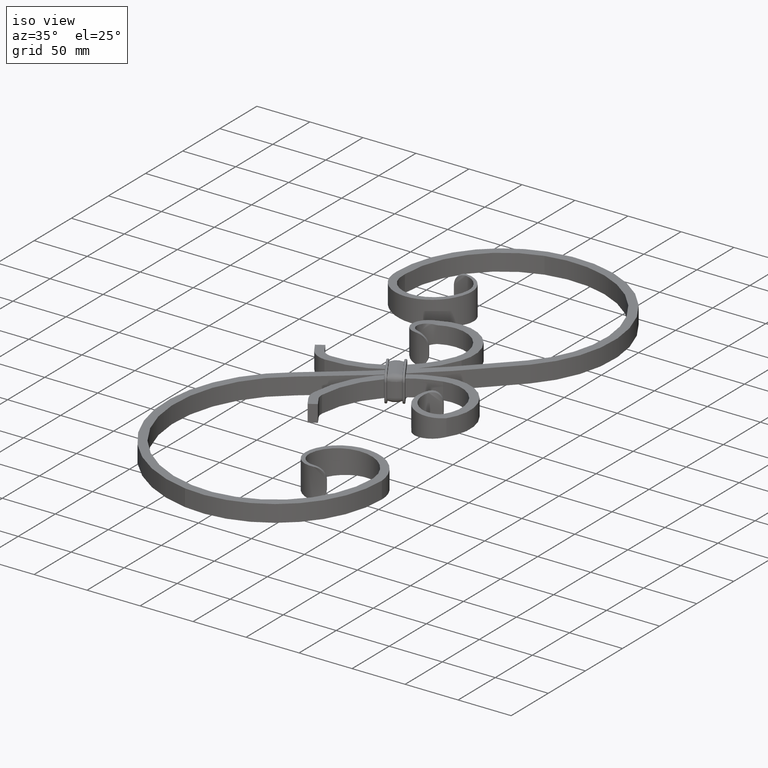
[diagram: clean part render]
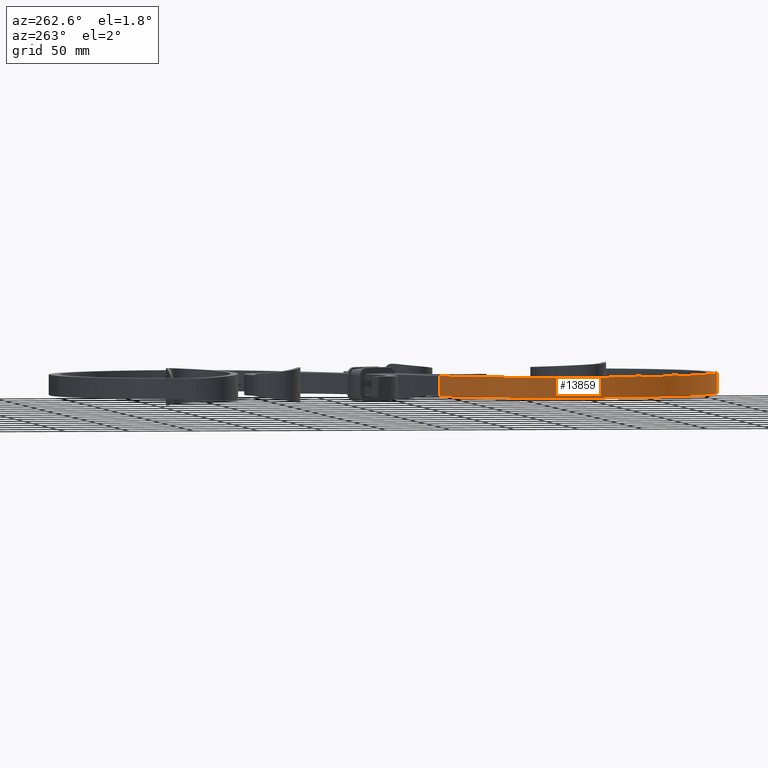
[diagram: tour spotlight — one face highlighted and labeled with its STEP entity id]
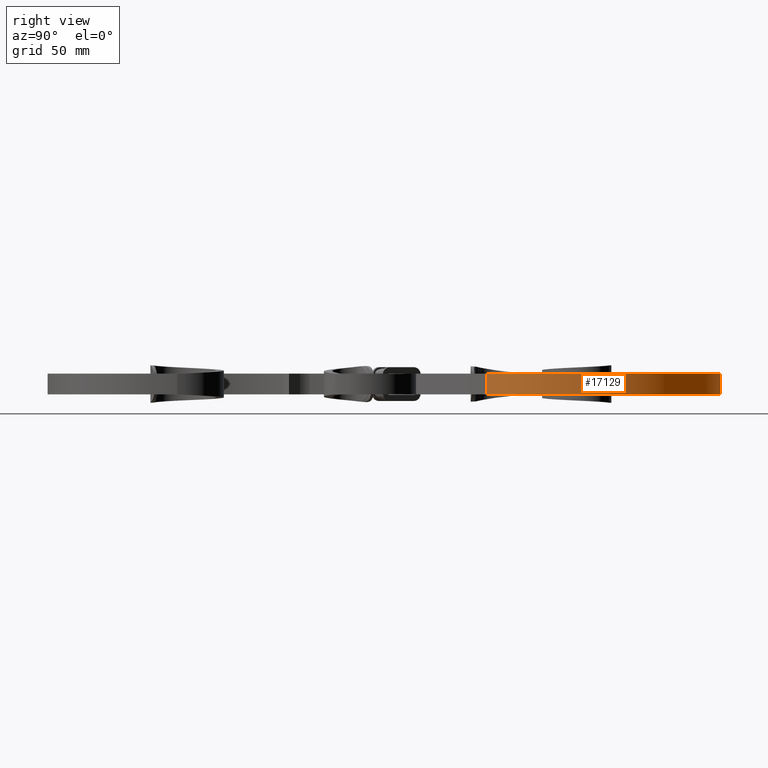
[diagram: tour spotlight — one face highlighted and labeled with its STEP entity id]
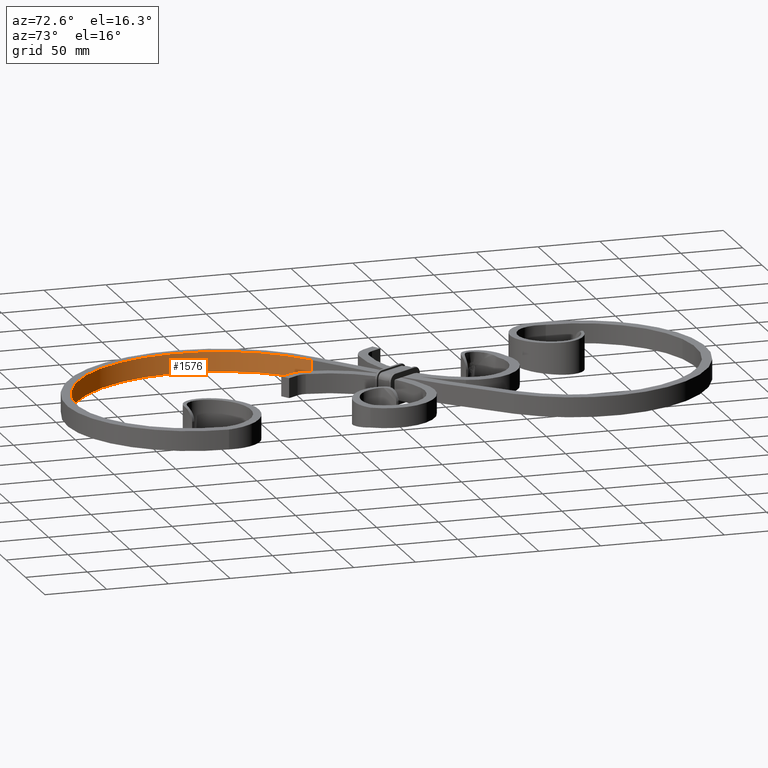
[diagram: tour spotlight — one face highlighted and labeled with its STEP entity id]
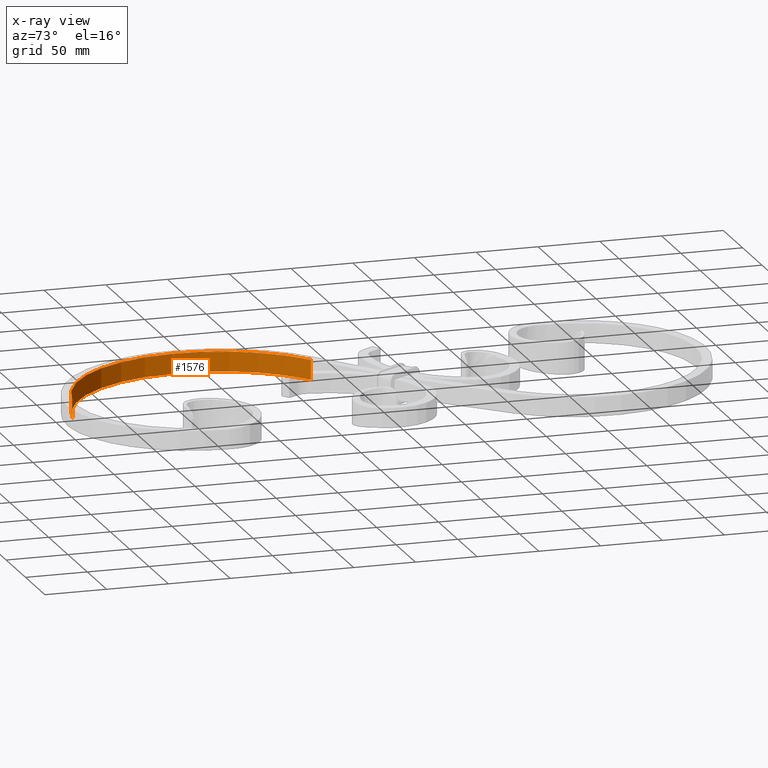
[diagram: x-ray of the same camera — body ghosted, this tour face saturated]
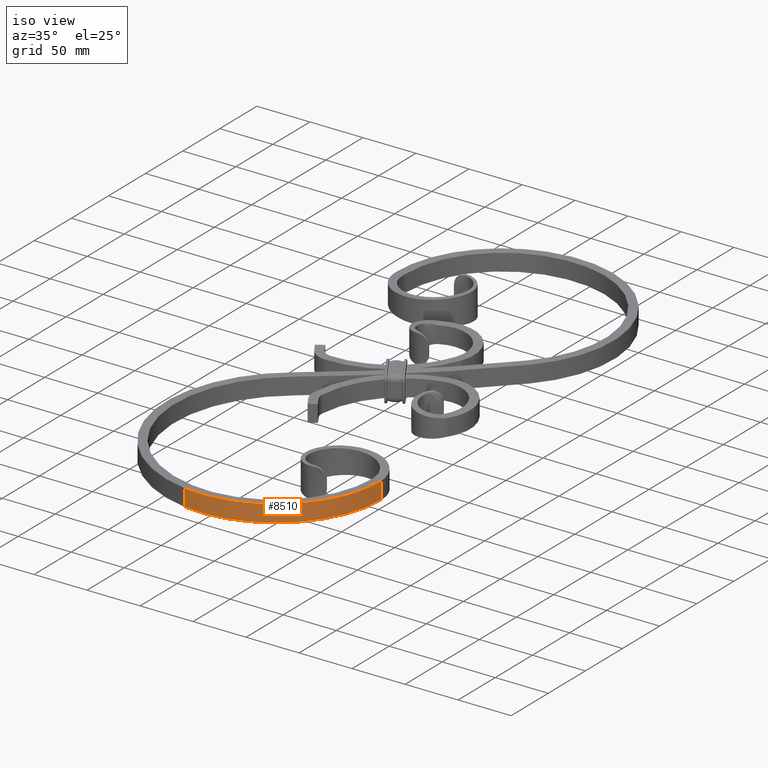
[diagram: tour spotlight — one face highlighted and labeled with its STEP entity id]
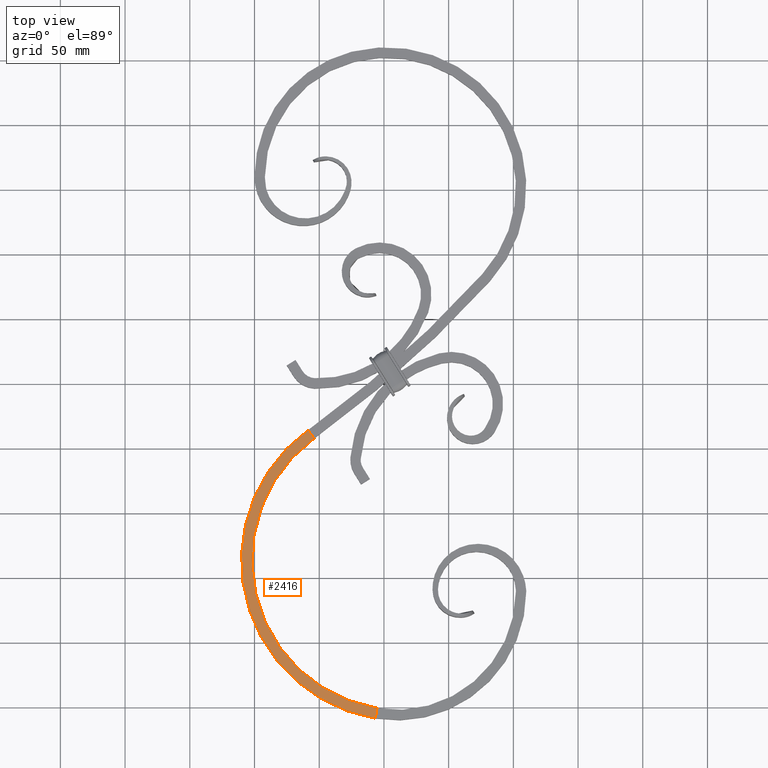
[diagram: tour spotlight — one face highlighted and labeled with its STEP entity id]
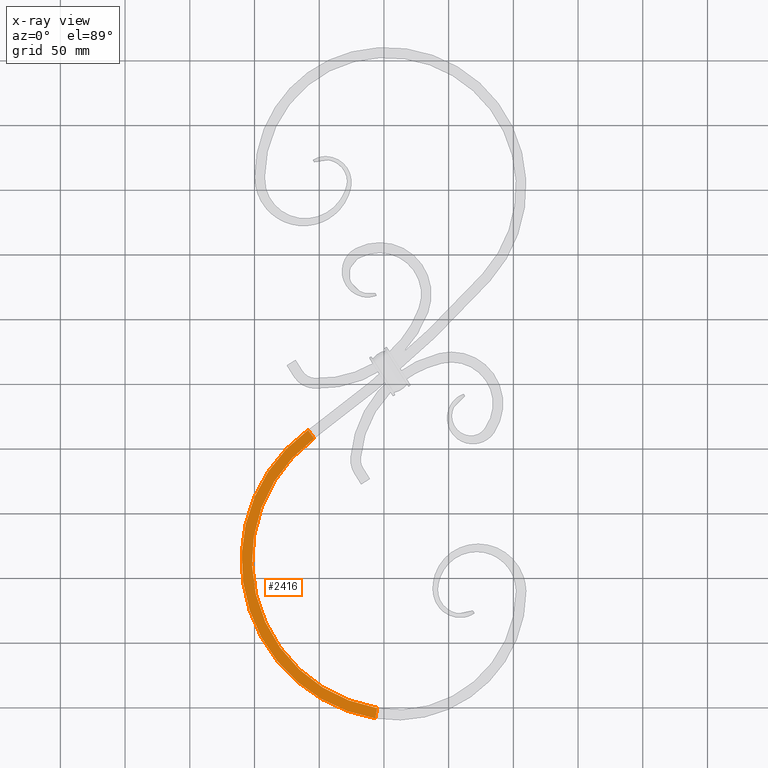
[diagram: x-ray of the same camera — body ghosted, this tour face saturated]
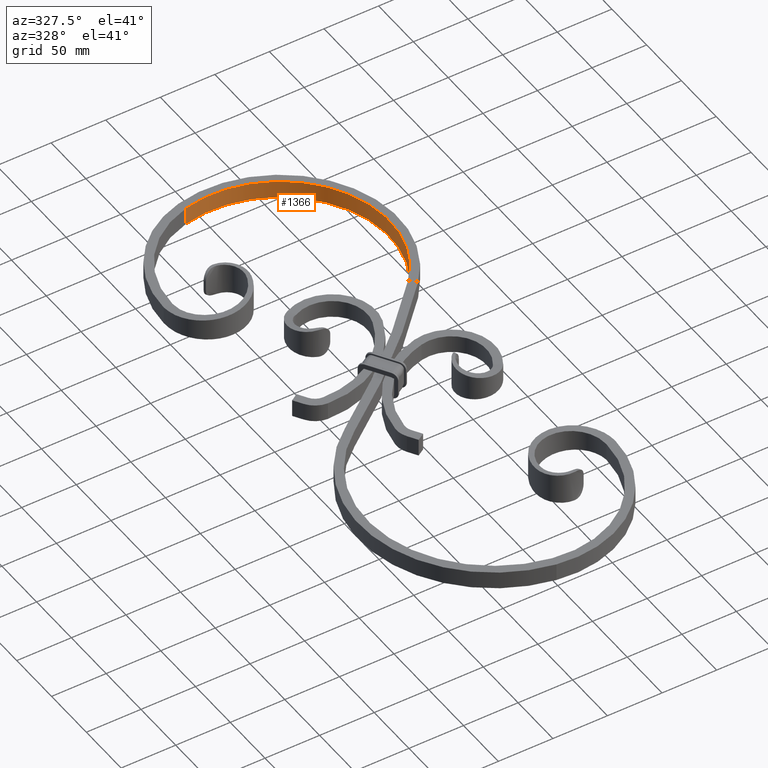
[diagram: tour spotlight — one face highlighted and labeled with its STEP entity id]
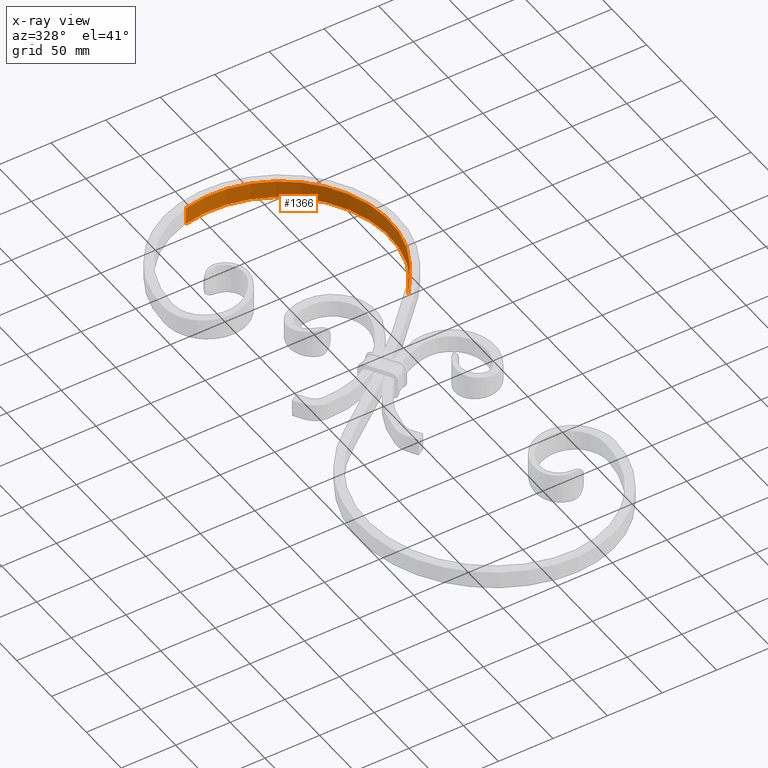
[diagram: x-ray of the same camera — body ghosted, this tour face saturated]
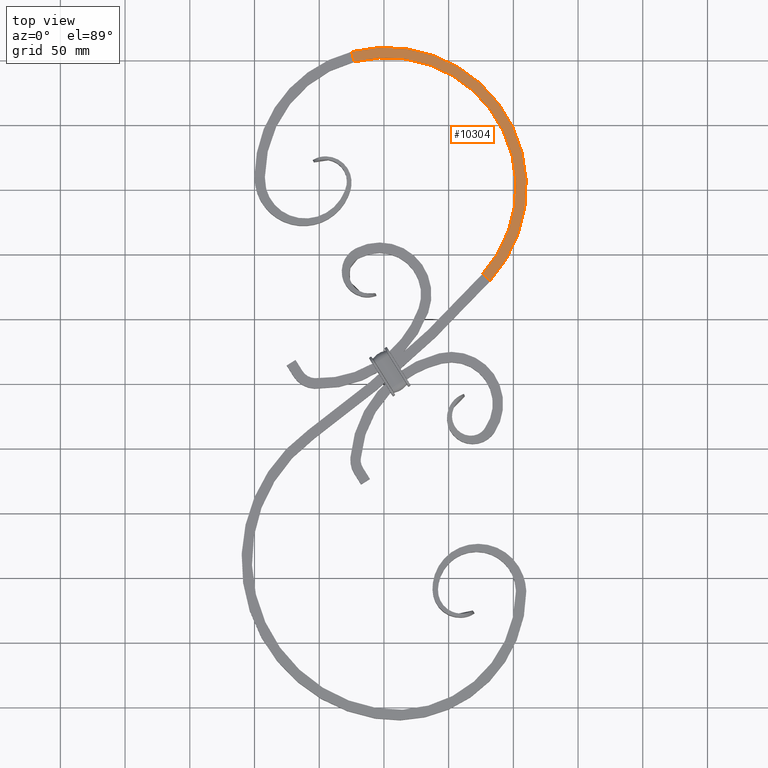
[diagram: tour spotlight — one face highlighted and labeled with its STEP entity id]
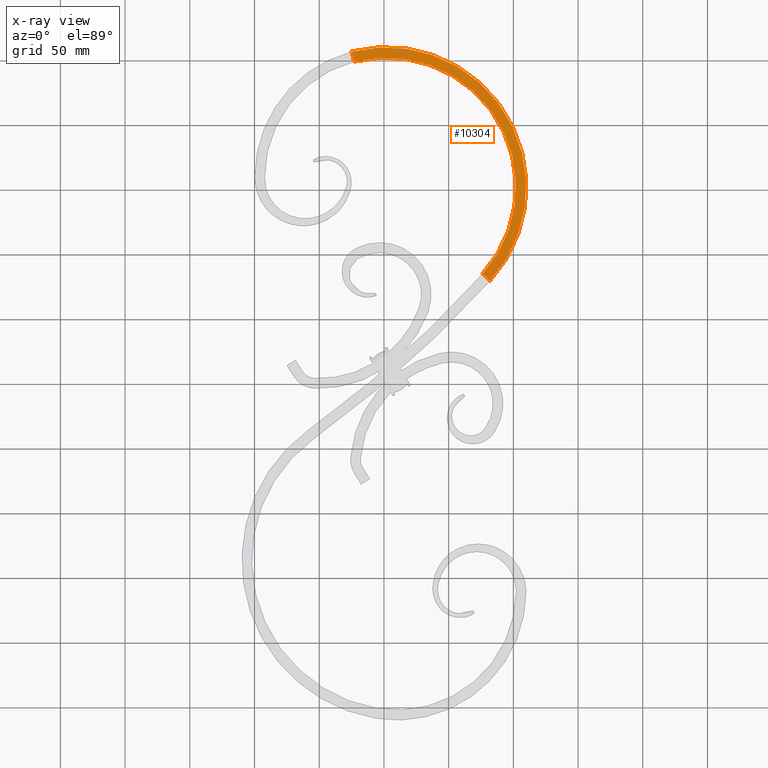
[diagram: x-ray of the same camera — body ghosted, this tour face saturated]
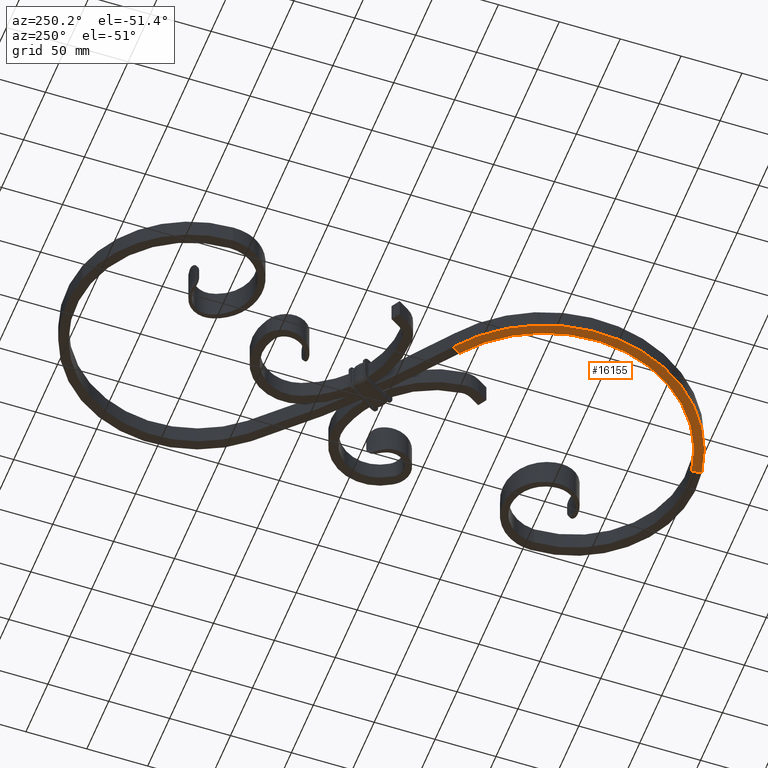
[diagram: tour spotlight — one face highlighted and labeled with its STEP entity id]
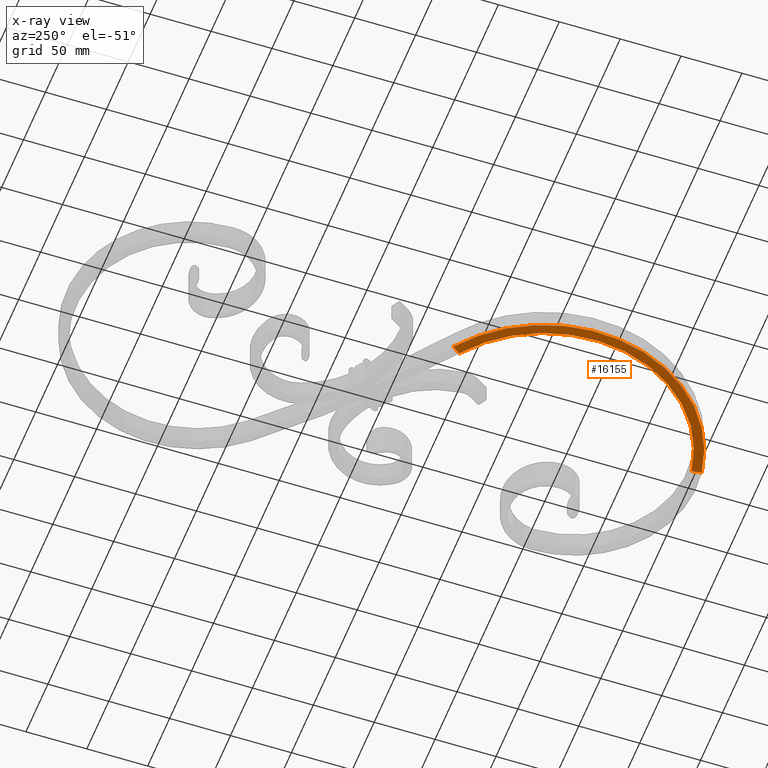
[diagram: x-ray of the same camera — body ghosted, this tour face saturated]
A machine part: a face-by-face anatomy tour. The part has 447 B-rep faces; the first image is the clean iso view, then the 8 largest visible faces are spotlighted one at a time (largest first), each with its STEP entity span.

Face 1 — auxiliary view, entity #13859. In plain terms, the highlighted cylindrical surface (partial cylindrical patch) has radius 124 mm, axis along (0, 0, 1).
Definition (entity closure, byte-faithful):
#66 = CYLINDRICAL_SURFACE ( 'NONE', #14224, 123.9999999999996021 ) ;
#320 = ORIENTED_EDGE ( 'NONE', *, *, #16294, .T. ) ;
#412 = VECTOR ( 'NONE', #17407, 1000.000000000000000 ) ;
#478 = VECTOR ( 'NONE', #2199, 1000.000000000000000 ) ;
#866 = ORIENTED_EDGE ( 'NONE', *, *, #8355, .T. ) ;
#867 = CARTESIAN_POINT ( 'NONE',  ( -6.666666666666518637, -258.6013297183266104, 8.000000000000001776 ) ) ;
#1367 = CARTESIAN_POINT ( 'NONE',  ( -58.65264834360872470, -35.84890219169978565, 8.000000000000001776 ) ) ;
#2199 = DIRECTION ( 'NONE',  ( -5.081945752965649062E-16, 7.028902177192451818E-16, -1.000000000000000000 ) ) ;
#3769 = AXIS2_PLACEMENT_3D ( 'NONE', #11984, #12242, #10721 ) ;
#3879 = LINE ( 'NONE', #7181, #412 ) ;
#4089 = VERTEX_POINT ( 'NONE', #1367 ) ;
#5553 = LINE ( 'NONE', #12718, #478 ) ;
#7181 = CARTESIAN_POINT ( 'NONE',  ( -6.666666666666543506, -258.6013297183266104, -8.000000000000000000 ) ) ;
#7786 = VERTEX_POINT ( 'NONE', #13438 ) ;
#8355 = EDGE_CURVE ( 'NONE', #4089, #7786, #5553, .T. ) ;
#8594 = DIRECTION ( 'NONE',  ( 0.000000000000000000, 0.000000000000000000, 1.000000000000000000 ) ) ;
#9217 = CIRCLE ( 'NONE', #12560, 123.9999999999995879 ) ;
#9862 = CARTESIAN_POINT ( 'NONE',  ( 14.00000000000002309, -136.3356808676015817, 8.000000000000001776 ) ) ;
#10060 = VERTEX_POINT ( 'NONE', #11840 ) ;
#10305 = EDGE_CURVE ( 'NONE', #4089, #15527, #9217, .T. ) ;
#10721 = DIRECTION ( 'NONE',  ( -0.5859084543839467862, 0.8103772473863112280, 0.000000000000000000 ) ) ;
#11293 = CIRCLE ( 'NONE', #3769, 123.9999999999996305 ) ;
#11840 = CARTESIAN_POINT ( 'NONE',  ( -6.666666666666532848, -258.6013297183266104, -8.000000000000000000 ) ) ;
#11984 = CARTESIAN_POINT ( 'NONE',  ( 14.00000000000002309, -136.3356808676015817, -8.000000000000000000 ) ) ;
#12242 = DIRECTION ( 'NONE',  ( 0.000000000000000000, 0.000000000000000000, 1.000000000000000000 ) ) ;
#12560 = AXIS2_PLACEMENT_3D ( 'NONE', #9862, #8594, #18822 ) ;
#12594 = ORIENTED_EDGE ( 'NONE', *, *, #10305, .F. ) ;
#12718 = CARTESIAN_POINT ( 'NONE',  ( -58.65264834360876733, -35.84890219169994907, -8.000000000000000000 ) ) ;
#13438 = CARTESIAN_POINT ( 'NONE',  ( -58.65264834360883839, -35.84890219169989223, -8.000000000000000000 ) ) ;
#13500 = EDGE_CURVE ( 'NONE', #15527, #10060, #3879, .T. ) ;
#13859 = ADVANCED_FACE ( 'NONE', ( #15587 ), #66, .T. ) ;
#13918 = ORIENTED_EDGE ( 'NONE', *, *, #13500, .F. ) ;
#14224 = AXIS2_PLACEMENT_3D ( 'NONE', #17252, #15856, #15669 ) ;
#15527 = VERTEX_POINT ( 'NONE', #867 ) ;
#15587 = FACE_OUTER_BOUND ( 'NONE', #16447, .T. ) ;
#15669 = DIRECTION ( 'NONE',  ( 1.000000000000000000, 0.000000000000000000, 0.000000000000000000 ) ) ;
#15856 = DIRECTION ( 'NONE',  ( 0.000000000000000000, 0.000000000000000000, 1.000000000000000000 ) ) ;
#16294 = EDGE_CURVE ( 'NONE', #7786, #10060, #11293, .T. ) ;
#16447 = EDGE_LOOP ( 'NONE', ( #320, #13918, #12594, #866 ) ) ;
#17252 = CARTESIAN_POINT ( 'NONE',  ( 14.00000000000002309, -136.3356808676015817, 0.000000000000000000 ) ) ;
#17407 = DIRECTION ( 'NONE',  ( -1.445602896647334479E-16, -8.552302071245568942E-16, -1.000000000000000000 ) ) ;
#18822 = DIRECTION ( 'NONE',  ( -0.5859084543839467862, 0.8103772473863111170, 0.000000000000000000 ) ) ;

Face 2 — right view, entity #17129. In plain terms, the highlighted cylindrical surface (partial cylindrical patch) has radius 108 mm, axis along (-0, -0, -1).
Definition (entity closure, byte-faithful):
#208 = AXIS2_PLACEMENT_3D ( 'NONE', #1173, #4249, #7231 ) ;
#1173 = CARTESIAN_POINT ( 'NONE',  ( 1.999999999999987121, 151.9999999999999716, 8.000000000000000000 ) ) ;
#1395 = CARTESIAN_POINT ( 'NONE',  ( -24.99999999999998579, 256.5705503476002605, -8.000000000000000000 ) ) ;
#1455 = CARTESIAN_POINT ( 'NONE',  ( 82.05368058509193929, 79.50580557878959098, -8.000000000000000000 ) ) ;
#2307 = CIRCLE ( 'NONE', #208, 108.0000000000007958 ) ;
#2796 = CYLINDRICAL_SURFACE ( 'NONE', #4639, 108.0000000000008100 ) ;
#4249 = DIRECTION ( 'NONE',  ( -0.000000000000000000, -0.000000000000000000, -1.000000000000000000 ) ) ;
#4330 = DIRECTION ( 'NONE',  ( -0.2499999999999998335, 0.9682458365518543664, 0.000000000000000000 ) ) ;
#4555 = DIRECTION ( 'NONE',  ( 0.000000000000000000, 0.000000000000000000, 1.000000000000000000 ) ) ;
#4639 = AXIS2_PLACEMENT_3D ( 'NONE', #12140, #12003, #13437 ) ;
#4689 = CARTESIAN_POINT ( 'NONE',  ( 82.05368058509193929, 79.50580557878959098, 8.000000000000000000 ) ) ;
#5059 = VECTOR ( 'NONE', #4555, 1000.000000000000000 ) ;
#5605 = AXIS2_PLACEMENT_3D ( 'NONE', #5738, #6001, #4330 ) ;
#5738 = CARTESIAN_POINT ( 'NONE',  ( 1.999999999999987121, 151.9999999999999716, -8.000000000000000000 ) ) ;
#6001 = DIRECTION ( 'NONE',  ( -0.000000000000000000, -0.000000000000000000, -1.000000000000000000 ) ) ;
#6668 = EDGE_CURVE ( 'NONE', #15801, #6994, #8126, .T. ) ;
#6994 = VERTEX_POINT ( 'NONE', #18063 ) ;
#7231 = DIRECTION ( 'NONE',  ( -0.2499999999999998335, 0.9682458365518543664, 0.000000000000000000 ) ) ;
#8126 = LINE ( 'NONE', #10090, #8361 ) ;
#8361 = VECTOR ( 'NONE', #8630, 1000.000000000000000 ) ;
#8630 = DIRECTION ( 'NONE',  ( 0.000000000000000000, 0.000000000000000000, 1.000000000000000000 ) ) ;
#8819 = ORIENTED_EDGE ( 'NONE', *, *, #14389, .F. ) ;
#9075 = CIRCLE ( 'NONE', #5605, 108.0000000000007958 ) ;
#9134 = ORIENTED_EDGE ( 'NONE', *, *, #18415, .F. ) ;
#9566 = EDGE_LOOP ( 'NONE', ( #17645, #9134, #8819, #13606 ) ) ;
#10090 = CARTESIAN_POINT ( 'NONE',  ( -24.99999999999999289, 256.5705503476002605, -8.000000000000000000 ) ) ;
#10138 = LINE ( 'NONE', #17880, #5059 ) ;
#11738 = FACE_OUTER_BOUND ( 'NONE', #9566, .T. ) ;
#12003 = DIRECTION ( 'NONE',  ( -0.000000000000000000, -0.000000000000000000, -1.000000000000000000 ) ) ;
#12140 = CARTESIAN_POINT ( 'NONE',  ( 1.999999999999987121, 151.9999999999999716, 0.000000000000000000 ) ) ;
#12155 = VERTEX_POINT ( 'NONE', #4689 ) ;
#13437 = DIRECTION ( 'NONE',  ( -1.000000000000000000, 0.000000000000000000, 0.000000000000000000 ) ) ;
#13606 = ORIENTED_EDGE ( 'NONE', *, *, #6668, .T. ) ;
#14389 = EDGE_CURVE ( 'NONE', #15801, #18759, #9075, .T. ) ;
#15801 = VERTEX_POINT ( 'NONE', #1395 ) ;
#17129 = ADVANCED_FACE ( 'NONE', ( #11738 ), #2796, .T. ) ;
#17645 = ORIENTED_EDGE ( 'NONE', *, *, #19066, .T. ) ;
#17880 = CARTESIAN_POINT ( 'NONE',  ( 82.05368058509193929, 79.50580557878963361, -8.000000000000000000 ) ) ;
#18063 = CARTESIAN_POINT ( 'NONE',  ( -24.99999999999998579, 256.5705503476002605, 8.000000000000000000 ) ) ;
#18415 = EDGE_CURVE ( 'NONE', #18759, #12155, #10138, .T. ) ;
#18759 = VERTEX_POINT ( 'NONE', #1455 ) ;
#19066 = EDGE_CURVE ( 'NONE', #6994, #12155, #2307, .T. ) ;

Face 3 — auxiliary view, entity #1576. An x-ray twin of the same camera follows (body ghosted, this face saturated) — the face is partly hidden behind the body. In plain terms, the highlighted cylindrical surface (partial cylindrical patch) has radius 116 mm, axis along (0, 0, 1).
Definition (entity closure, byte-faithful):
#1058 = DIRECTION ( 'NONE',  ( 0.000000000000000000, 0.000000000000000000, 1.000000000000000000 ) ) ;
#1576 = ADVANCED_FACE ( 'NONE', ( #12109 ), #4537, .F. ) ;
#1999 = VERTEX_POINT ( 'NONE', #6798 ) ;
#2323 = EDGE_CURVE ( 'NONE', #1999, #17006, #10280, .T. ) ;
#2352 = EDGE_CURVE ( 'NONE', #17006, #9635, #17126, .T. ) ;
#2988 = DIRECTION ( 'NONE',  ( -0.5859084543839467862, 0.8103772473863111170, 0.000000000000000000 ) ) ;
#3177 = ORIENTED_EDGE ( 'NONE', *, *, #16029, .F. ) ;
#3439 = CARTESIAN_POINT ( 'NONE',  ( -53.96538070853713975, -42.33192017079040426, -8.000000000000000000 ) ) ;
#4537 = CYLINDRICAL_SURFACE ( 'NONE', #5064, 115.9999999999996163 ) ;
#4785 = DIRECTION ( 'NONE',  ( 0.000000000000000000, 0.000000000000000000, 1.000000000000000000 ) ) ;
#5064 = AXIS2_PLACEMENT_3D ( 'NONE', #9332, #12134, #16622 ) ;
#5103 = AXIS2_PLACEMENT_3D ( 'NONE', #9864, #1058, #17282 ) ;
#5265 = CARTESIAN_POINT ( 'NONE',  ( -5.333333333333217574, -250.7132233408604236, -8.000000000000000000 ) ) ;
#5922 = DIRECTION ( 'NONE',  ( 0.000000000000000000, 0.000000000000000000, 1.000000000000000000 ) ) ;
#6798 = CARTESIAN_POINT ( 'NONE',  ( -53.96538070853728897, -42.33192017079034741, -8.000000000000000000 ) ) ;
#6890 = ORIENTED_EDGE ( 'NONE', *, *, #2323, .T. ) ;
#8128 = CIRCLE ( 'NONE', #5103, 115.9999999999996305 ) ;
#9332 = CARTESIAN_POINT ( 'NONE',  ( 14.00000000000002309, -136.3356808676015817, 0.000000000000000000 ) ) ;
#9387 = ORIENTED_EDGE ( 'NONE', *, *, #2352, .T. ) ;
#9539 = DIRECTION ( 'NONE',  ( 0.000000000000000000, 0.000000000000000000, 1.000000000000000000 ) ) ;
#9635 = VERTEX_POINT ( 'NONE', #10725 ) ;
#9864 = CARTESIAN_POINT ( 'NONE',  ( 14.00000000000002309, -136.3356808676015817, -8.000000000000000000 ) ) ;
#10005 = AXIS2_PLACEMENT_3D ( 'NONE', #10377, #5922, #2988 ) ;
#10049 = VECTOR ( 'NONE', #4785, 1000.000000000000000 ) ;
#10280 = LINE ( 'NONE', #3439, #10049 ) ;
#10377 = CARTESIAN_POINT ( 'NONE',  ( 14.00000000000002309, -136.3356808676015817, 8.000000000000000000 ) ) ;
#10725 = CARTESIAN_POINT ( 'NONE',  ( -5.333333333333248660, -250.7132233408604236, 8.000000000000000000 ) ) ;
#12076 = VERTEX_POINT ( 'NONE', #18991 ) ;
#12109 = FACE_OUTER_BOUND ( 'NONE', #17601, .T. ) ;
#12134 = DIRECTION ( 'NONE',  ( 0.000000000000000000, 0.000000000000000000, 1.000000000000000000 ) ) ;
#13160 = LINE ( 'NONE', #5265, #14767 ) ;
#14767 = VECTOR ( 'NONE', #9539, 1000.000000000000000 ) ;
#15650 = EDGE_CURVE ( 'NONE', #1999, #12076, #8128, .T. ) ;
#16029 = EDGE_CURVE ( 'NONE', #12076, #9635, #13160, .T. ) ;
#16076 = CARTESIAN_POINT ( 'NONE',  ( -53.96538070853728897, -42.33192017079034741, 8.000000000000000000 ) ) ;
#16542 = ORIENTED_EDGE ( 'NONE', *, *, #15650, .F. ) ;
#16622 = DIRECTION ( 'NONE',  ( 1.000000000000000000, 0.000000000000000000, 0.000000000000000000 ) ) ;
#17006 = VERTEX_POINT ( 'NONE', #16076 ) ;
#17126 = CIRCLE ( 'NONE', #10005, 115.9999999999996305 ) ;
#17282 = DIRECTION ( 'NONE',  ( -0.5859084543839467862, 0.8103772473863111170, 0.000000000000000000 ) ) ;
#17601 = EDGE_LOOP ( 'NONE', ( #9387, #3177, #16542, #6890 ) ) ;
#18991 = CARTESIAN_POINT ( 'NONE',  ( -5.333333333333248660, -250.7132233408604236, -8.000000000000000000 ) ) ;

Face 4 — iso view, entity #8510. In plain terms, the highlighted cylindrical surface (partial cylindrical patch) has radius 100 mm, axis along (0, 0, 1).
Definition (entity closure, byte-faithful):
#357 = CARTESIAN_POINT ( 'NONE',  ( 110.0000000000000568, -160.0000000000000000, -8.000000000000000000 ) ) ;
#412 = VECTOR ( 'NONE', #17407, 1000.000000000000000 ) ;
#867 = CARTESIAN_POINT ( 'NONE',  ( -6.666666666666518637, -258.6013297183266104, 8.000000000000001776 ) ) ;
#1821 = CARTESIAN_POINT ( 'NONE',  ( 110.0000000000000711, -160.0000000000000000, -8.000000000000000000 ) ) ;
#1858 = DIRECTION ( 'NONE',  ( 8.673617379884035472E-16, 0.000000000000000000, -1.000000000000000000 ) ) ;
#1880 = FACE_OUTER_BOUND ( 'NONE', #12505, .T. ) ;
#2710 = DIRECTION ( 'NONE',  ( -0.1666666666666663521, -0.9860132971832693549, 0.000000000000000000 ) ) ;
#3879 = LINE ( 'NONE', #7181, #412 ) ;
#5258 = EDGE_CURVE ( 'NONE', #15527, #15150, #15030, .T. ) ;
#5699 = CARTESIAN_POINT ( 'NONE',  ( 110.0000000000000426, -160.0000000000000000, 8.000000000000000000 ) ) ;
#6341 = DIRECTION ( 'NONE',  ( 0.000000000000000000, 0.000000000000000000, 1.000000000000000000 ) ) ;
#6545 = CARTESIAN_POINT ( 'NONE',  ( 10.00000000000003730, -160.0000000000000568, -8.000000000000000000 ) ) ;
#6726 = AXIS2_PLACEMENT_3D ( 'NONE', #6545, #6341, #7955 ) ;
#7009 = EDGE_CURVE ( 'NONE', #15150, #14620, #12460, .T. ) ;
#7181 = CARTESIAN_POINT ( 'NONE',  ( -6.666666666666543506, -258.6013297183266104, -8.000000000000000000 ) ) ;
#7351 = CARTESIAN_POINT ( 'NONE',  ( 10.00000000000003730, -160.0000000000000568, 8.000000000000001776 ) ) ;
#7955 = DIRECTION ( 'NONE',  ( -0.1666666666666662411, -0.9860132971832693549, 0.000000000000000000 ) ) ;
#8510 = ADVANCED_FACE ( 'NONE', ( #1880 ), #9254, .T. ) ;
#9030 = CARTESIAN_POINT ( 'NONE',  ( 10.00000000000003730, -160.0000000000000568, 0.000000000000000000 ) ) ;
#9151 = DIRECTION ( 'NONE',  ( 0.000000000000000000, 0.000000000000000000, 1.000000000000000000 ) ) ;
#9254 = CYLINDRICAL_SURFACE ( 'NONE', #12415, 100.0000000000000426 ) ;
#10060 = VERTEX_POINT ( 'NONE', #11840 ) ;
#11166 = ORIENTED_EDGE ( 'NONE', *, *, #5258, .F. ) ;
#11840 = CARTESIAN_POINT ( 'NONE',  ( -6.666666666666532848, -258.6013297183266104, -8.000000000000000000 ) ) ;
#12129 = DIRECTION ( 'NONE',  ( 1.000000000000000000, 0.000000000000000000, 0.000000000000000000 ) ) ;
#12415 = AXIS2_PLACEMENT_3D ( 'NONE', #9030, #9151, #12129 ) ;
#12460 = LINE ( 'NONE', #357, #17276 ) ;
#12505 = EDGE_LOOP ( 'NONE', ( #13708, #15752, #11166, #15054 ) ) ;
#12967 = DIRECTION ( 'NONE',  ( 0.000000000000000000, 0.000000000000000000, 1.000000000000000000 ) ) ;
#13500 = EDGE_CURVE ( 'NONE', #15527, #10060, #3879, .T. ) ;
#13708 = ORIENTED_EDGE ( 'NONE', *, *, #14135, .T. ) ;
#13925 = CIRCLE ( 'NONE', #6726, 100.0000000000000568 ) ;
#14135 = EDGE_CURVE ( 'NONE', #10060, #14620, #13925, .T. ) ;
#14620 = VERTEX_POINT ( 'NONE', #1821 ) ;
#15030 = CIRCLE ( 'NONE', #17547, 100.0000000000000000 ) ;
#15054 = ORIENTED_EDGE ( 'NONE', *, *, #13500, .T. ) ;
#15150 = VERTEX_POINT ( 'NONE', #5699 ) ;
#15527 = VERTEX_POINT ( 'NONE', #867 ) ;
#15752 = ORIENTED_EDGE ( 'NONE', *, *, #7009, .F. ) ;
#17276 = VECTOR ( 'NONE', #1858, 1000.000000000000000 ) ;
#17407 = DIRECTION ( 'NONE',  ( -1.445602896647334479E-16, -8.552302071245568942E-16, -1.000000000000000000 ) ) ;
#17547 = AXIS2_PLACEMENT_3D ( 'NONE', #7351, #12967, #2710 ) ;

Face 5 — top view, entity #2416. An x-ray twin of the same camera follows (body ghosted, this face saturated) — the face is partly hidden behind the body. In plain terms, the highlighted planar face has unit normal (0, 0, 1).
Definition (entity closure, byte-faithful):
#209 = VECTOR ( 'NONE', #12053, 1000.000000000000114 ) ;
#551 = DIRECTION ( 'NONE',  ( -0.1666666666666661023, -0.9860132971832693549, 2.168404344971010347E-16 ) ) ;
#867 = CARTESIAN_POINT ( 'NONE',  ( -6.666666666666518637, -258.6013297183266104, 8.000000000000001776 ) ) ;
#1367 = CARTESIAN_POINT ( 'NONE',  ( -58.65264834360872470, -35.84890219169978565, 8.000000000000001776 ) ) ;
#1545 = CARTESIAN_POINT ( 'NONE',  ( -5.333333333333217574, -250.7132233408604236, 8.000000000000000000 ) ) ;
#1686 = DIRECTION ( 'NONE',  ( 1.000000000000000000, 0.000000000000000000, -0.000000000000000000 ) ) ;
#1749 = CARTESIAN_POINT ( 'NONE',  ( -53.96538070853756608, -42.33192017078979319, 8.000000000000000000 ) ) ;
#2270 = VECTOR ( 'NONE', #551, 1000.000000000000114 ) ;
#2352 = EDGE_CURVE ( 'NONE', #17006, #9635, #17126, .T. ) ;
#2416 = ADVANCED_FACE ( 'NONE', ( #7303 ), #4583, .T. ) ;
#2988 = DIRECTION ( 'NONE',  ( -0.5859084543839467862, 0.8103772473863111170, 0.000000000000000000 ) ) ;
#4089 = VERTEX_POINT ( 'NONE', #1367 ) ;
#4513 = DIRECTION ( 'NONE',  ( 0.000000000000000000, 0.000000000000000000, 1.000000000000000000 ) ) ;
#4583 = PLANE ( 'NONE',  #15535 ) ;
#5041 = LINE ( 'NONE', #6363, #209 ) ;
#5922 = DIRECTION ( 'NONE',  ( 0.000000000000000000, 0.000000000000000000, 1.000000000000000000 ) ) ;
#6363 = CARTESIAN_POINT ( 'NONE',  ( -53.96538070853713975, -42.33192017079040426, 8.000000000000000000 ) ) ;
#6385 = ORIENTED_EDGE ( 'NONE', *, *, #10305, .T. ) ;
#7123 = LINE ( 'NONE', #1545, #2270 ) ;
#7303 = FACE_OUTER_BOUND ( 'NONE', #11640, .T. ) ;
#7964 = ORIENTED_EDGE ( 'NONE', *, *, #10890, .T. ) ;
#8594 = DIRECTION ( 'NONE',  ( 0.000000000000000000, 0.000000000000000000, 1.000000000000000000 ) ) ;
#9217 = CIRCLE ( 'NONE', #12560, 123.9999999999995879 ) ;
#9635 = VERTEX_POINT ( 'NONE', #10725 ) ;
#9862 = CARTESIAN_POINT ( 'NONE',  ( 14.00000000000002309, -136.3356808676015817, 8.000000000000001776 ) ) ;
#10005 = AXIS2_PLACEMENT_3D ( 'NONE', #10377, #5922, #2988 ) ;
#10305 = EDGE_CURVE ( 'NONE', #4089, #15527, #9217, .T. ) ;
#10377 = CARTESIAN_POINT ( 'NONE',  ( 14.00000000000002309, -136.3356808676015817, 8.000000000000000000 ) ) ;
#10725 = CARTESIAN_POINT ( 'NONE',  ( -5.333333333333248660, -250.7132233408604236, 8.000000000000000000 ) ) ;
#10890 = EDGE_CURVE ( 'NONE', #17006, #4089, #5041, .T. ) ;
#11640 = EDGE_LOOP ( 'NONE', ( #6385, #13936, #15961, #7964 ) ) ;
#12053 = DIRECTION ( 'NONE',  ( -0.5859084543839532255, 0.8103772473863065651, 2.168404344971010840E-16 ) ) ;
#12560 = AXIS2_PLACEMENT_3D ( 'NONE', #9862, #8594, #18822 ) ;
#12970 = EDGE_CURVE ( 'NONE', #9635, #15527, #7123, .T. ) ;
#13936 = ORIENTED_EDGE ( 'NONE', *, *, #12970, .F. ) ;
#15527 = VERTEX_POINT ( 'NONE', #867 ) ;
#15535 = AXIS2_PLACEMENT_3D ( 'NONE', #1749, #4513, #1686 ) ;
#15961 = ORIENTED_EDGE ( 'NONE', *, *, #2352, .F. ) ;
#16076 = CARTESIAN_POINT ( 'NONE',  ( -53.96538070853728897, -42.33192017079034741, 8.000000000000000000 ) ) ;
#17006 = VERTEX_POINT ( 'NONE', #16076 ) ;
#17126 = CIRCLE ( 'NONE', #10005, 115.9999999999996305 ) ;
#18822 = DIRECTION ( 'NONE',  ( -0.5859084543839467862, 0.8103772473863111170, 0.000000000000000000 ) ) ;

Face 6 — auxiliary view, entity #1366. An x-ray twin of the same camera follows (body ghosted, this face saturated) — the face is partly hidden behind the body. In plain terms, the highlighted cylindrical surface (partial cylindrical patch) has radius 100 mm, axis along (-0, -0, -1).
Definition (entity closure, byte-faithful):
#106 = VECTOR ( 'NONE', #8848, 1000.000000000000000 ) ;
#297 = CARTESIAN_POINT ( 'NONE',  ( -23.00000000000000711, 248.8245836551853927, -8.000000000000000000 ) ) ;
#911 = CARTESIAN_POINT ( 'NONE',  ( 1.999999999999987121, 151.9999999999999716, 0.000000000000000000 ) ) ;
#1366 = ADVANCED_FACE ( 'NONE', ( #14428 ), #2718, .F. ) ;
#1422 = CARTESIAN_POINT ( 'NONE',  ( -23.00000000000001066, 248.8245836551854211, 8.000000000000001776 ) ) ;
#2718 = CYLINDRICAL_SURFACE ( 'NONE', #17859, 100.0000000000007958 ) ;
#3693 = CARTESIAN_POINT ( 'NONE',  ( 76.12377831952960605, 84.87574590628662463, 8.000000000000001776 ) ) ;
#4023 = EDGE_CURVE ( 'NONE', #13992, #12107, #9780, .T. ) ;
#4904 = AXIS2_PLACEMENT_3D ( 'NONE', #14545, #10187, #13132 ) ;
#5509 = CARTESIAN_POINT ( 'NONE',  ( 76.12377831952960605, 84.87574590628665305, -8.000000000000000000 ) ) ;
#5569 = ORIENTED_EDGE ( 'NONE', *, *, #4023, .T. ) ;
#6188 = EDGE_CURVE ( 'NONE', #12107, #9625, #15256, .T. ) ;
#6237 = CARTESIAN_POINT ( 'NONE',  ( 76.12377831952960605, 84.87574590628662463, -8.000000000000000000 ) ) ;
#6310 = DIRECTION ( 'NONE',  ( -0.2499999999999997502, 0.9682458365518543664, 0.000000000000000000 ) ) ;
#6851 = ORIENTED_EDGE ( 'NONE', *, *, #17293, .F. ) ;
#6911 = DIRECTION ( 'NONE',  ( -1.000000000000000000, 0.000000000000000000, 0.000000000000000000 ) ) ;
#7760 = ORIENTED_EDGE ( 'NONE', *, *, #7971, .F. ) ;
#7971 = EDGE_CURVE ( 'NONE', #11636, #9625, #8106, .T. ) ;
#8080 = EDGE_LOOP ( 'NONE', ( #12683, #7760, #6851, #5569 ) ) ;
#8106 = LINE ( 'NONE', #5509, #12446 ) ;
#8848 = DIRECTION ( 'NONE',  ( 2.168404344971009854E-16, -8.398193915916520277E-16, -1.000000000000000000 ) ) ;
#9625 = VERTEX_POINT ( 'NONE', #6237 ) ;
#9780 = LINE ( 'NONE', #17597, #106 ) ;
#10187 = DIRECTION ( 'NONE',  ( -0.000000000000000000, -0.000000000000000000, -1.000000000000000000 ) ) ;
#11636 = VERTEX_POINT ( 'NONE', #3693 ) ;
#12107 = VERTEX_POINT ( 'NONE', #297 ) ;
#12258 = DIRECTION ( 'NONE',  ( -0.000000000000000000, -0.000000000000000000, -1.000000000000000000 ) ) ;
#12432 = CIRCLE ( 'NONE', #14486, 100.0000000000007958 ) ;
#12446 = VECTOR ( 'NONE', #13039, 1000.000000000000000 ) ;
#12683 = ORIENTED_EDGE ( 'NONE', *, *, #6188, .T. ) ;
#12727 = DIRECTION ( 'NONE',  ( -0.000000000000000000, -0.000000000000000000, -1.000000000000000000 ) ) ;
#13039 = DIRECTION ( 'NONE',  ( -6.429212918949386237E-16, 5.822100969189791241E-16, -1.000000000000000000 ) ) ;
#13132 = DIRECTION ( 'NONE',  ( -0.2499999999999997502, 0.9682458365518543664, 0.000000000000000000 ) ) ;
#13992 = VERTEX_POINT ( 'NONE', #1422 ) ;
#14428 = FACE_OUTER_BOUND ( 'NONE', #8080, .T. ) ;
#14486 = AXIS2_PLACEMENT_3D ( 'NONE', #15103, #12258, #6310 ) ;
#14545 = CARTESIAN_POINT ( 'NONE',  ( 1.999999999999987121, 151.9999999999999716, -8.000000000000000000 ) ) ;
#15103 = CARTESIAN_POINT ( 'NONE',  ( 1.999999999999987121, 151.9999999999999716, 8.000000000000001776 ) ) ;
#15256 = CIRCLE ( 'NONE', #4904, 100.0000000000007958 ) ;
#17293 = EDGE_CURVE ( 'NONE', #13992, #11636, #12432, .T. ) ;
#17597 = CARTESIAN_POINT ( 'NONE',  ( -22.99999999999999289, 248.8245836551853927, -8.000000000000000000 ) ) ;
#17859 = AXIS2_PLACEMENT_3D ( 'NONE', #911, #12727, #6911 ) ;

Face 7 — top view, entity #10304. An x-ray twin of the same camera follows (body ghosted, this face saturated) — the face is partly hidden behind the body. In plain terms, the highlighted planar face has unit normal (0, 0, 1).
Definition (entity closure, byte-faithful):
#208 = AXIS2_PLACEMENT_3D ( 'NONE', #1173, #4249, #7231 ) ;
#761 = VECTOR ( 'NONE', #12395, 1000.000000000000000 ) ;
#1173 = CARTESIAN_POINT ( 'NONE',  ( 1.999999999999987121, 151.9999999999999716, 8.000000000000000000 ) ) ;
#1422 = CARTESIAN_POINT ( 'NONE',  ( -23.00000000000001066, 248.8245836551854211, 8.000000000000001776 ) ) ;
#1613 = FACE_OUTER_BOUND ( 'NONE', #4485, .T. ) ;
#2307 = CIRCLE ( 'NONE', #208, 108.0000000000007958 ) ;
#2337 = LINE ( 'NONE', #16339, #12205 ) ;
#3606 = CARTESIAN_POINT ( 'NONE',  ( 82.05368058509193929, 79.50580557878963361, 8.000000000000000000 ) ) ;
#3693 = CARTESIAN_POINT ( 'NONE',  ( 76.12377831952960605, 84.87574590628662463, 8.000000000000001776 ) ) ;
#4249 = DIRECTION ( 'NONE',  ( -0.000000000000000000, -0.000000000000000000, -1.000000000000000000 ) ) ;
#4461 = LINE ( 'NONE', #3606, #761 ) ;
#4485 = EDGE_LOOP ( 'NONE', ( #7205, #7394, #18053, #7011 ) ) ;
#4661 = DIRECTION ( 'NONE',  ( 0.2500000000000001110, -0.9682458365518541443, 2.168404344971010347E-16 ) ) ;
#4689 = CARTESIAN_POINT ( 'NONE',  ( 82.05368058509193929, 79.50580557878959098, 8.000000000000000000 ) ) ;
#5543 = DIRECTION ( 'NONE',  ( 1.000000000000000000, 0.000000000000000000, -0.000000000000000000 ) ) ;
#6310 = DIRECTION ( 'NONE',  ( -0.2499999999999997502, 0.9682458365518543664, 0.000000000000000000 ) ) ;
#6505 = EDGE_CURVE ( 'NONE', #12155, #11636, #4461, .T. ) ;
#6994 = VERTEX_POINT ( 'NONE', #18063 ) ;
#7011 = ORIENTED_EDGE ( 'NONE', *, *, #16599, .T. ) ;
#7205 = ORIENTED_EDGE ( 'NONE', *, *, #17293, .T. ) ;
#7231 = DIRECTION ( 'NONE',  ( -0.2499999999999998335, 0.9682458365518543664, 0.000000000000000000 ) ) ;
#7394 = ORIENTED_EDGE ( 'NONE', *, *, #6505, .F. ) ;
#10304 = ADVANCED_FACE ( 'NONE', ( #1613 ), #18687, .T. ) ;
#11376 = CARTESIAN_POINT ( 'NONE',  ( -25.00000000000018829, 256.5705503476009994, 8.000000000000000000 ) ) ;
#11442 = DIRECTION ( 'NONE',  ( 0.000000000000000000, 0.000000000000000000, 1.000000000000000000 ) ) ;
#11636 = VERTEX_POINT ( 'NONE', #3693 ) ;
#11820 = AXIS2_PLACEMENT_3D ( 'NONE', #11376, #11442, #5543 ) ;
#12155 = VERTEX_POINT ( 'NONE', #4689 ) ;
#12205 = VECTOR ( 'NONE', #4661, 1000.000000000000114 ) ;
#12258 = DIRECTION ( 'NONE',  ( -0.000000000000000000, -0.000000000000000000, -1.000000000000000000 ) ) ;
#12395 = DIRECTION ( 'NONE',  ( -0.7412377831952905449, 0.6712425409371276519, 2.168404344971010594E-16 ) ) ;
#12432 = CIRCLE ( 'NONE', #14486, 100.0000000000007958 ) ;
#13992 = VERTEX_POINT ( 'NONE', #1422 ) ;
#14486 = AXIS2_PLACEMENT_3D ( 'NONE', #15103, #12258, #6310 ) ;
#15103 = CARTESIAN_POINT ( 'NONE',  ( 1.999999999999987121, 151.9999999999999716, 8.000000000000001776 ) ) ;
#16339 = CARTESIAN_POINT ( 'NONE',  ( -24.99999999999999289, 256.5705503476002605, 8.000000000000000000 ) ) ;
#16599 = EDGE_CURVE ( 'NONE', #6994, #13992, #2337, .T. ) ;
#17293 = EDGE_CURVE ( 'NONE', #13992, #11636, #12432, .T. ) ;
#18053 = ORIENTED_EDGE ( 'NONE', *, *, #19066, .F. ) ;
#18063 = CARTESIAN_POINT ( 'NONE',  ( -24.99999999999998579, 256.5705503476002605, 8.000000000000000000 ) ) ;
#18687 = PLANE ( 'NONE',  #11820 ) ;
#19066 = EDGE_CURVE ( 'NONE', #6994, #12155, #2307, .T. ) ;

Face 8 — auxiliary view, entity #16155. An x-ray twin of the same camera follows (body ghosted, this face saturated) — the face is partly hidden behind the body. In plain terms, the highlighted planar face has unit normal (-0, 0, -1).
Definition (entity closure, byte-faithful):
#800 = AXIS2_PLACEMENT_3D ( 'NONE', #16346, #9122, #13405 ) ;
#1058 = DIRECTION ( 'NONE',  ( 0.000000000000000000, 0.000000000000000000, 1.000000000000000000 ) ) ;
#1999 = VERTEX_POINT ( 'NONE', #6798 ) ;
#3769 = AXIS2_PLACEMENT_3D ( 'NONE', #11984, #12242, #10721 ) ;
#3955 = EDGE_CURVE ( 'NONE', #7786, #1999, #15289, .T. ) ;
#5103 = AXIS2_PLACEMENT_3D ( 'NONE', #9864, #1058, #17282 ) ;
#5202 = EDGE_LOOP ( 'NONE', ( #15516, #8628, #8707, #6602 ) ) ;
#6602 = ORIENTED_EDGE ( 'NONE', *, *, #15650, .T. ) ;
#6798 = CARTESIAN_POINT ( 'NONE',  ( -53.96538070853728897, -42.33192017079034741, -8.000000000000000000 ) ) ;
#7786 = VERTEX_POINT ( 'NONE', #13438 ) ;
#8128 = CIRCLE ( 'NONE', #5103, 115.9999999999996305 ) ;
#8628 = ORIENTED_EDGE ( 'NONE', *, *, #16294, .F. ) ;
#8707 = ORIENTED_EDGE ( 'NONE', *, *, #3955, .T. ) ;
#8793 = DIRECTION ( 'NONE',  ( 0.5859084543839532255, -0.8103772473863065651, -0.000000000000000000 ) ) ;
#9122 = DIRECTION ( 'NONE',  ( -0.000000000000000000, 0.000000000000000000, -1.000000000000000000 ) ) ;
#9864 = CARTESIAN_POINT ( 'NONE',  ( 14.00000000000002309, -136.3356808676015817, -8.000000000000000000 ) ) ;
#10060 = VERTEX_POINT ( 'NONE', #11840 ) ;
#10721 = DIRECTION ( 'NONE',  ( -0.5859084543839467862, 0.8103772473863112280, 0.000000000000000000 ) ) ;
#11293 = CIRCLE ( 'NONE', #3769, 123.9999999999996305 ) ;
#11840 = CARTESIAN_POINT ( 'NONE',  ( -6.666666666666532848, -258.6013297183266104, -8.000000000000000000 ) ) ;
#11952 = DIRECTION ( 'NONE',  ( 0.1666666666666661023, 0.9860132971832693549, -0.000000000000000000 ) ) ;
#11984 = CARTESIAN_POINT ( 'NONE',  ( 14.00000000000002309, -136.3356808676015817, -8.000000000000000000 ) ) ;
#12076 = VERTEX_POINT ( 'NONE', #18991 ) ;
#12242 = DIRECTION ( 'NONE',  ( 0.000000000000000000, 0.000000000000000000, 1.000000000000000000 ) ) ;
#12295 = VECTOR ( 'NONE', #8793, 1000.000000000000114 ) ;
#12489 = EDGE_CURVE ( 'NONE', #10060, #12076, #14698, .T. ) ;
#13342 = PLANE ( 'NONE',  #800 ) ;
#13405 = DIRECTION ( 'NONE',  ( -1.000000000000000000, 0.000000000000000000, 0.000000000000000000 ) ) ;
#13438 = CARTESIAN_POINT ( 'NONE',  ( -58.65264834360883839, -35.84890219169989223, -8.000000000000000000 ) ) ;
#13621 = FACE_OUTER_BOUND ( 'NONE', #5202, .T. ) ;
#14471 = CARTESIAN_POINT ( 'NONE',  ( -53.96538070853713975, -42.33192017079040426, -8.000000000000000000 ) ) ;
#14698 = LINE ( 'NONE', #17658, #15349 ) ;
#15289 = LINE ( 'NONE', #14471, #12295 ) ;
#15349 = VECTOR ( 'NONE', #11952, 1000.000000000000114 ) ;
#15516 = ORIENTED_EDGE ( 'NONE', *, *, #12489, .F. ) ;
#15650 = EDGE_CURVE ( 'NONE', #1999, #12076, #8128, .T. ) ;
#16155 = ADVANCED_FACE ( 'NONE', ( #13621 ), #13342, .T. ) ;
#16294 = EDGE_CURVE ( 'NONE', #7786, #10060, #11293, .T. ) ;
#16346 = CARTESIAN_POINT ( 'NONE',  ( -53.96538070853756608, -42.33192017078979319, -8.000000000000000000 ) ) ;
#17282 = DIRECTION ( 'NONE',  ( -0.5859084543839467862, 0.8103772473863111170, 0.000000000000000000 ) ) ;
#17658 = CARTESIAN_POINT ( 'NONE',  ( -5.333333333333217574, -250.7132233408604236, -8.000000000000000000 ) ) ;
#18991 = CARTESIAN_POINT ( 'NONE',  ( -5.333333333333248660, -250.7132233408604236, -8.000000000000000000 ) ) ;